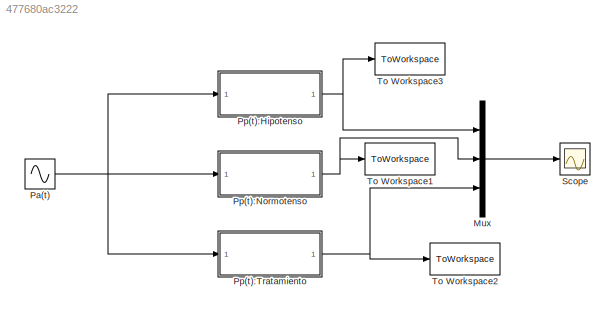
MODEL slx_477680ac3222
KIND model
CONFIG AbsTol = auto
CONFIG EnableMultiTasking = off
CONFIG FixedStep = auto
CONFIG MaxStep = 1e-3
CONFIG MinStep = auto
CONFIG RelTol = 1e-3
CONFIG SampleTimeConstraint = Unconstrained
CONFIG SolverName = ode15s
CONFIG StartTime = 0.0
CONFIG StopTime = 10.0
BLOCK [Mux] Mux
  DisplayOption = bar
  Inputs = 3
BLOCK [Sin] Pa(t)
  Amplitude = 2.5
  Frequency = (2*pi)
  SampleTime = 0
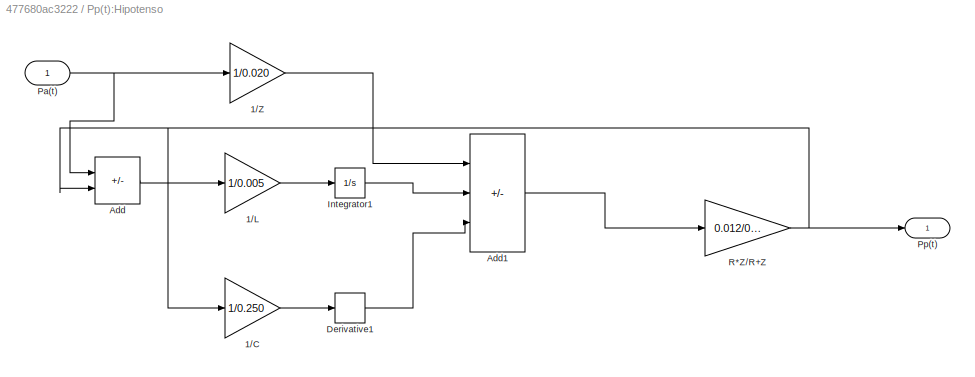
BLOCK [SubSystem] Pp(t):Hipotenso
BLOCK [Gain] Pp(t):Hipotenso/1//C
  Gain = 1/0.250
BLOCK [Gain] Pp(t):Hipotenso/1//L
  Gain = 1/0.005
BLOCK [Gain] Pp(t):Hipotenso/1//Z
  Gain = 1/0.020
BLOCK [Sum] Pp(t):Hipotenso/Add
  IconShape = rectangular
  Inputs = +-
BLOCK [Sum] Pp(t):Hipotenso/Add1
  IconShape = rectangular
  Inputs = ++-
BLOCK [Derivative] Pp(t):Hipotenso/Derivative1
BLOCK [Integrator] Pp(t):Hipotenso/Integrator1
BLOCK [Inport] Pp(t):Hipotenso/Pa(t)
BLOCK [Outport] Pp(t):Hipotenso/Pp(t)
BLOCK [Gain] Pp(t):Hipotenso/R*Z//R+Z
  Gain = 0.012/0.62
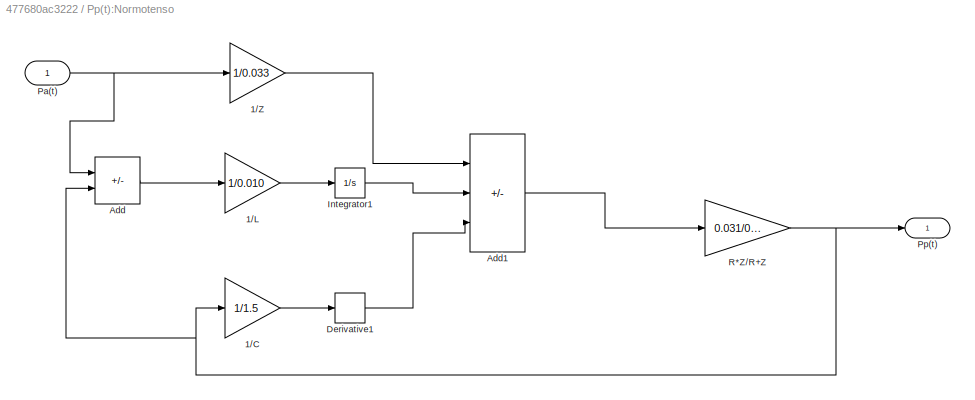
BLOCK [SubSystem] Pp(t):Normotenso
BLOCK [Gain] Pp(t):Normotenso/1//C
  Gain = 1/1.5
BLOCK [Gain] Pp(t):Normotenso/1//L
  Gain = 1/0.010
BLOCK [Gain] Pp(t):Normotenso/1//Z
  Gain = 1/0.033
BLOCK [Sum] Pp(t):Normotenso/Add
  IconShape = rectangular
  Inputs = +-
BLOCK [Sum] Pp(t):Normotenso/Add1
  IconShape = rectangular
  Inputs = ++-
BLOCK [Derivative] Pp(t):Normotenso/Derivative1
BLOCK [Integrator] Pp(t):Normotenso/Integrator1
BLOCK [Inport] Pp(t):Normotenso/Pa(t)
BLOCK [Outport] Pp(t):Normotenso/Pp(t)
BLOCK [Gain] Pp(t):Normotenso/R*Z//R+Z
  Gain = 0.031/0.983
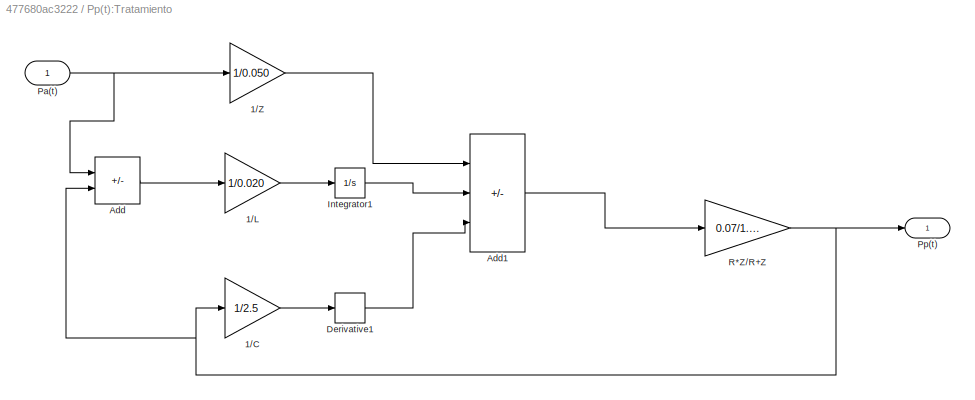
BLOCK [SubSystem] Pp(t):Tratamiento
BLOCK [Gain] Pp(t):Tratamiento/1//C
  Gain = 1/2.5
BLOCK [Gain] Pp(t):Tratamiento/1//L
  Gain = 1/0.020
BLOCK [Gain] Pp(t):Tratamiento/1//Z
  Gain = 1/0.050
BLOCK [Sum] Pp(t):Tratamiento/Add
  IconShape = rectangular
  Inputs = +-
BLOCK [Sum] Pp(t):Tratamiento/Add1
  IconShape = rectangular
  Inputs = ++-
BLOCK [Derivative] Pp(t):Tratamiento/Derivative1
BLOCK [Integrator] Pp(t):Tratamiento/Integrator1
BLOCK [Inport] Pp(t):Tratamiento/Pa(t)
BLOCK [Outport] Pp(t):Tratamiento/Pp(t)
BLOCK [Gain] Pp(t):Tratamiento/R*Z//R+Z
  Gain = 0.07/1.45
BLOCK [Scope] Scope
  Floating = off
  NumInputPorts = 1
  ScopeSpecificationString = Simulink.scopes.TimeScopeBlockCfg('CurrentConfiguration', extmgr.ConfigurationSet(extmgr.Configuration('Core','General UI',true),extmgr.Configuration('Core','Source UI',true),extmgr.Configuration('Sources','WiredSimulink',true),extmgr.Configuration('Visuals','Time Domain',true,'SerializedDisplays',{struct('MinYLimReal','-3.56663','MaxYLimReal','3.55198','YLabelReal','','MinYLimMag','0.00000','MaxY...<+1777ch>
BLOCK [ToWorkspace] To Workspace1
  FixptAsFi = on
  MaxDataPoints = inf
  SampleTime = -1
  VariableName = Ppy
BLOCK [ToWorkspace] To Workspace2
  FixptAsFi = on
  MaxDataPoints = inf
  SampleTime = -1
  VariableName = Ppz
BLOCK [ToWorkspace] To Workspace3
  FixptAsFi = on
  MaxDataPoints = inf
  SampleTime = -1
  VariableName = Ppx
LINE Mux:1 -> Scope:1
NET Pa(t):1 -> Pp(t):Hipotenso:1, Pp(t):Normotenso:1, Pp(t):Tratamiento:1
LINE Pp(t):Hipotenso/1//C:1 -> Pp(t):Hipotenso/Derivative1:1
LINE Pp(t):Hipotenso/1//L:1 -> Pp(t):Hipotenso/Integrator1:1
LINE Pp(t):Hipotenso/1//Z:1 -> Pp(t):Hipotenso/Add1:1
LINE Pp(t):Hipotenso/Add1:1 -> Pp(t):Hipotenso/R*Z//R+Z:1
LINE Pp(t):Hipotenso/Add:1 -> Pp(t):Hipotenso/1//L:1
LINE Pp(t):Hipotenso/Derivative1:1 -> Pp(t):Hipotenso/Add1:3
LINE Pp(t):Hipotenso/Integrator1:1 -> Pp(t):Hipotenso/Add1:2
NET Pp(t):Hipotenso/Pa(t):1 -> Pp(t):Hipotenso/1//Z:1, Pp(t):Hipotenso/Add:1
NET Pp(t):Hipotenso/R*Z//R+Z:1 -> Pp(t):Hipotenso/1//C:1, Pp(t):Hipotenso/Add:2, Pp(t):Hipotenso/Pp(t):1
NET Pp(t):Hipotenso:1 -> Mux:1, To Workspace3:1
LINE Pp(t):Normotenso/1//C:1 -> Pp(t):Normotenso/Derivative1:1
LINE Pp(t):Normotenso/1//L:1 -> Pp(t):Normotenso/Integrator1:1
LINE Pp(t):Normotenso/1//Z:1 -> Pp(t):Normotenso/Add1:1
LINE Pp(t):Normotenso/Add1:1 -> Pp(t):Normotenso/R*Z//R+Z:1
LINE Pp(t):Normotenso/Add:1 -> Pp(t):Normotenso/1//L:1
LINE Pp(t):Normotenso/Derivative1:1 -> Pp(t):Normotenso/Add1:3
LINE Pp(t):Normotenso/Integrator1:1 -> Pp(t):Normotenso/Add1:2
NET Pp(t):Normotenso/Pa(t):1 -> Pp(t):Normotenso/1//Z:1, Pp(t):Normotenso/Add:1
NET Pp(t):Normotenso/R*Z//R+Z:1 -> Pp(t):Normotenso/1//C:1, Pp(t):Normotenso/Add:2, Pp(t):Normotenso/Pp(t):1
NET Pp(t):Normotenso:1 -> Mux:2, To Workspace1:1
LINE Pp(t):Tratamiento/1//C:1 -> Pp(t):Tratamiento/Derivative1:1
LINE Pp(t):Tratamiento/1//L:1 -> Pp(t):Tratamiento/Integrator1:1
LINE Pp(t):Tratamiento/1//Z:1 -> Pp(t):Tratamiento/Add1:1
LINE Pp(t):Tratamiento/Add1:1 -> Pp(t):Tratamiento/R*Z//R+Z:1
LINE Pp(t):Tratamiento/Add:1 -> Pp(t):Tratamiento/1//L:1
LINE Pp(t):Tratamiento/Derivative1:1 -> Pp(t):Tratamiento/Add1:3
LINE Pp(t):Tratamiento/Integrator1:1 -> Pp(t):Tratamiento/Add1:2
NET Pp(t):Tratamiento/Pa(t):1 -> Pp(t):Tratamiento/1//Z:1, Pp(t):Tratamiento/Add:1
NET Pp(t):Tratamiento/R*Z//R+Z:1 -> Pp(t):Tratamiento/1//C:1, Pp(t):Tratamiento/Add:2, Pp(t):Tratamiento/Pp(t):1
NET Pp(t):Tratamiento:1 -> Mux:3, To Workspace2:1
note: NET lines group one-source signal fan-out (src -> all destinations, sorted); 1:1 wires keep LINE
